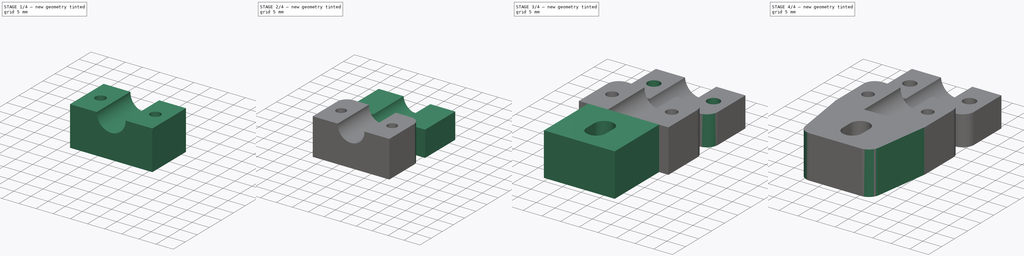
[diagram: build sequence overview — one tinted view per stage of 4, left to right]
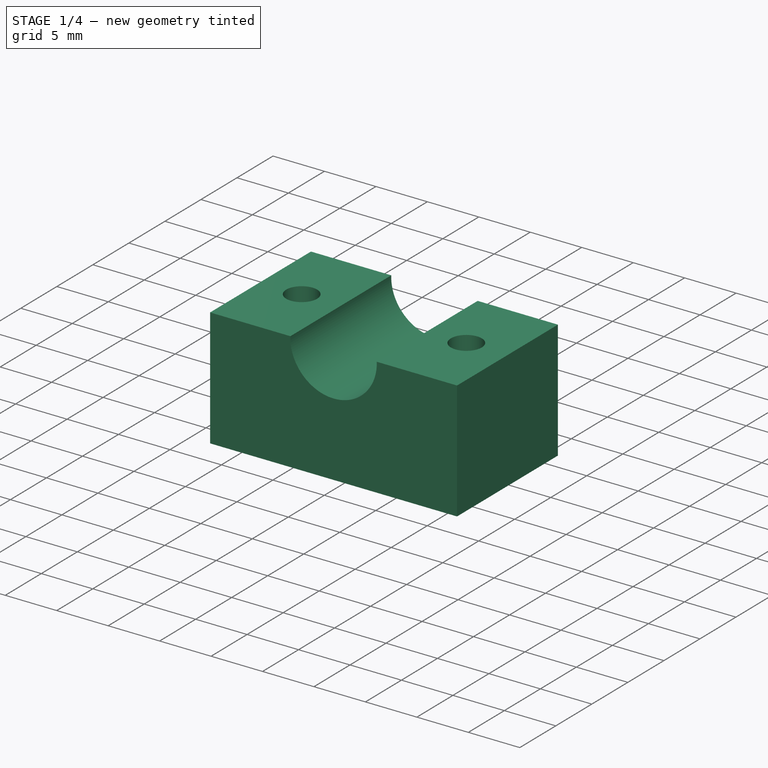
[diagram: stage 1 of 4 — iso view after this stage's code; geometry added in this stage tinted green]
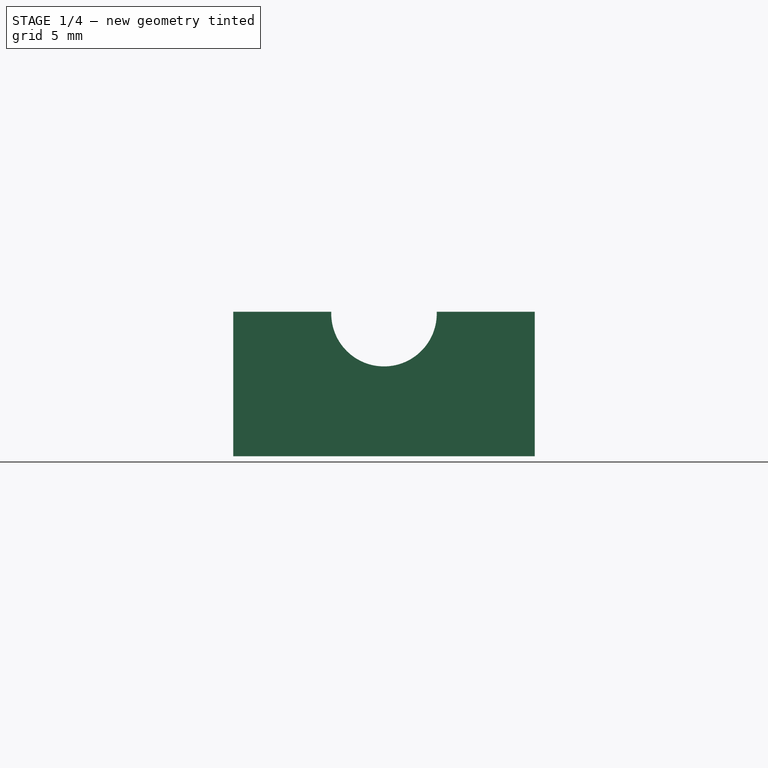
[diagram: stage 1 of 4 — front view after this stage's code; geometry added in this stage tinted green]
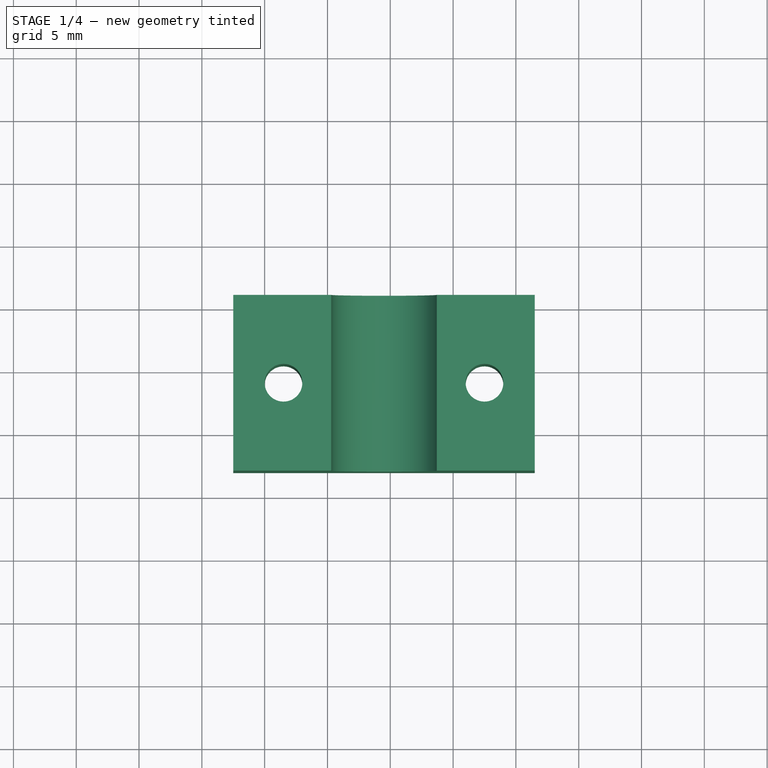
[diagram: stage 1 of 4 — top view after this stage's code; geometry added in this stage tinted green]
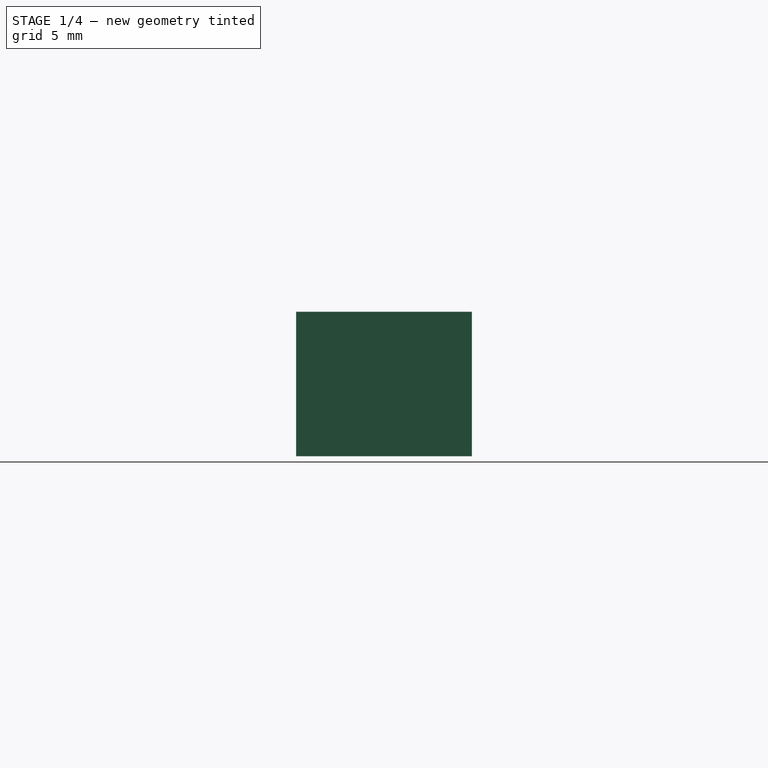
[diagram: stage 1 of 4 — right view after this stage's code; geometry added in this stage tinted green]
FCSTD DOCUMENT  (FreeCAD 0.16R6706 (Git))
Label: xy-railcaps
License: All rights reserved
LicenseURL: http://en.wikipedia.org/wiki/All_rights_reserved
objects: Sketcher::SketchObject×5, PartDesign::Pocket×5, Part::Box×3, PartDesign::Fillet×3, PartDesign::Draft×2, App::DocumentObjectGroup×1
note: 23 computed .brp shape members not serialized (recipe doc carries the construction recipe); baked Part::Feature solids carry a one-line shape summary decoded from their .brp

FEATURE [Part::Box] Box001  label="Cube001"
  Height = 11.5
  Length = 24
  Placement = pos=(-2.5,17,0) rot=(0,0,1;0rad)
  Width = 14
FEATURE [Sketcher::SketchObject] Sketch001
  Placement = pos=(-2.5,31,0) rot=(0,0.707107,0.707107;3.14159rad)
  Support = -> Box001 [Face4]
  sketch-geometry (1):
    g0: Circle CenterX=-12 CenterY=11.35 CenterZ=0 NormalX=0 NormalY=0 NormalZ=1 Radius=4.2
  constraints (3):
    c: Radius(g0) = 4.2
    c: DistanceX(g-2,g0) = -12
    c: DistanceY(g-1,g0) = 11.35
FEATURE [PartDesign::Pocket] Pocket001
  Length = 14
  Placement = pos=(-2.5,17,0) rot=(0,0,1;0rad)
  Sketch = -> Sketch001
  Type = 0
FEATURE [Sketcher::SketchObject] Sketch002
  Placement = pos=(-2.5,17,0) rot=(1,0,0;3.14159rad)
  Support = -> Pocket001 [Face5]
  sketch-geometry (2):
    g0: Circle CenterX=4 CenterY=-7 CenterZ=0 NormalX=0 NormalY=0 NormalZ=1 Radius=1.5
    g1: Circle CenterX=20 CenterY=-7 CenterZ=0 NormalX=0 NormalY=0 NormalZ=1 Radius=1.5
  constraints (6):
    c: Radius(g0) = 1.5
    c: Equal(g0,g1)
    c: DistanceY(g-1,g0) = -7
    c: DistanceY(g-1,g1) = -7
    c: DistanceX(g-2,g0) = 4
    c: Distance(g0,g1) = 16
FEATURE [PartDesign::Pocket] Pocket002
  Length = 5
  Placement = pos=(-2.5,17,0) rot=(0,0,1;0rad)
  Sketch = -> Sketch002
  Type = 1
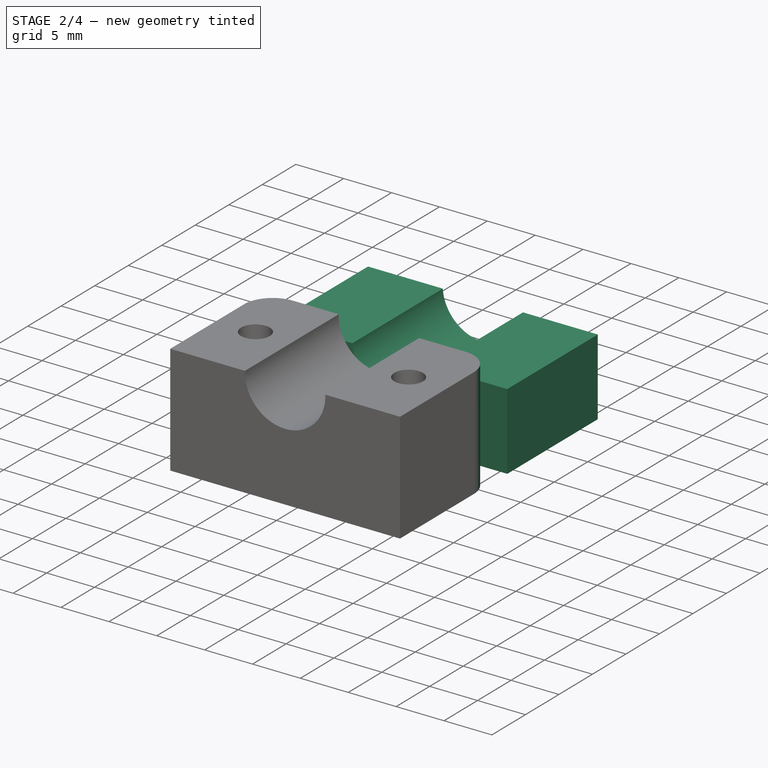
[diagram: stage 2 of 4 — iso view after this stage's code; geometry added in this stage tinted green]
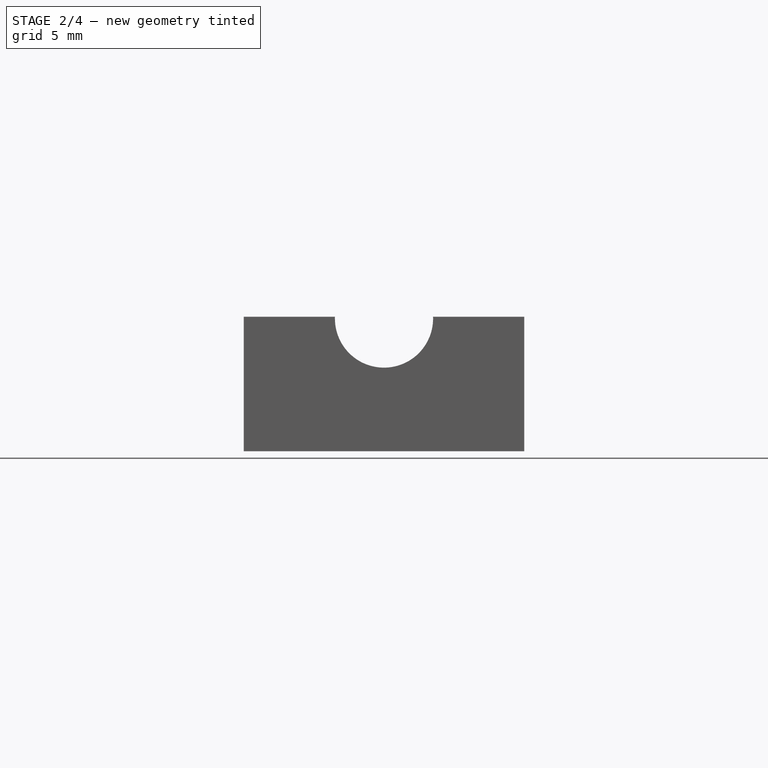
[diagram: stage 2 of 4 — front view after this stage's code; geometry added in this stage tinted green]
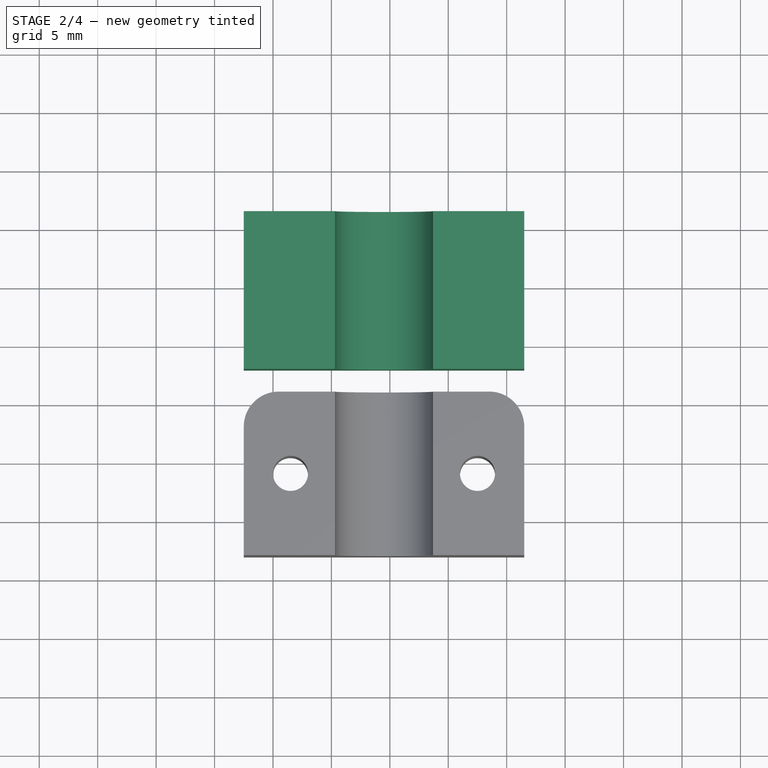
[diagram: stage 2 of 4 — top view after this stage's code; geometry added in this stage tinted green]
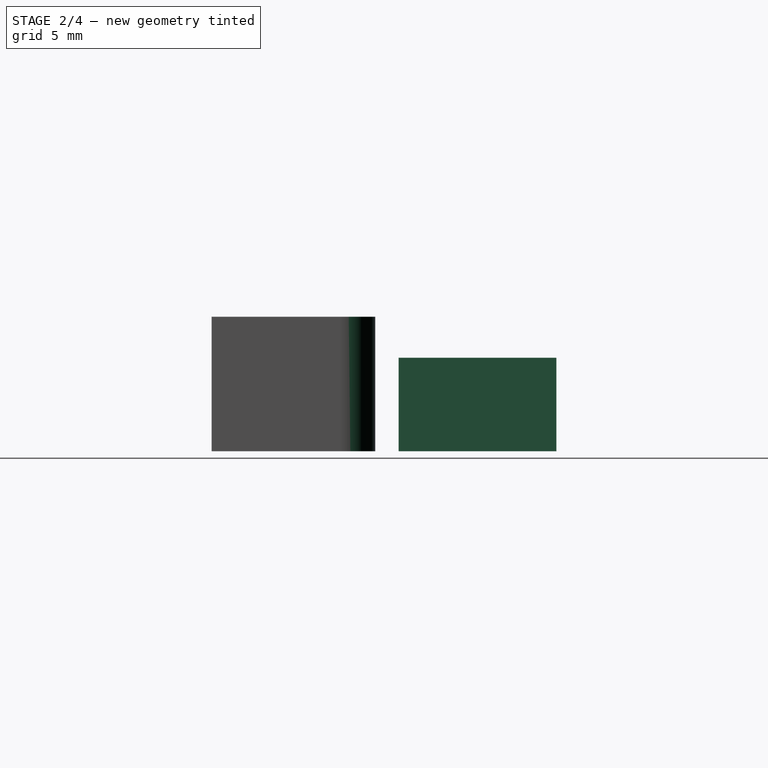
[diagram: stage 2 of 4 — right view after this stage's code; geometry added in this stage tinted green]
FEATURE [Part::Box] Box002  label="Cube002"
  Height = 8
  Length = 24
  Placement = pos=(-2.5,33,0) rot=(0,0,1;0rad)
  Width = 13.5
FEATURE [Sketcher::SketchObject] Sketch003
  Placement = pos=(-2.5,46.5,0) rot=(0,0.707107,0.707107;3.14159rad)
  Support = -> Box002 [Face4]
  sketch-geometry (1):
    g0: Circle CenterX=-12 CenterY=8.3 CenterZ=0 NormalX=0 NormalY=0 NormalZ=1 Radius=4.2
  constraints (3):
    c: Radius(g0) = 4.2
    c: DistanceX(g-2,g0) = -12
    c: DistanceY(g-1,g0) = 8.3
FEATURE [PartDesign::Pocket] Pocket003
  Length = 14
  Placement = pos=(-2.5,33,0) rot=(0,0,1;0rad)
  Sketch = -> Sketch003
  Type = 0
FEATURE [App::DocumentObjectGroup] Group  label="top"
  Group = -> [Fillet,Box002,Pocket004,Pocket003]
FEATURE [PartDesign::Fillet] Fillet003
  Base = -> Pocket002 [Edge3,Edge14]
  Placement = pos=(-2.5,17,0) rot=(0,0,1;0rad)
  Radius = 3
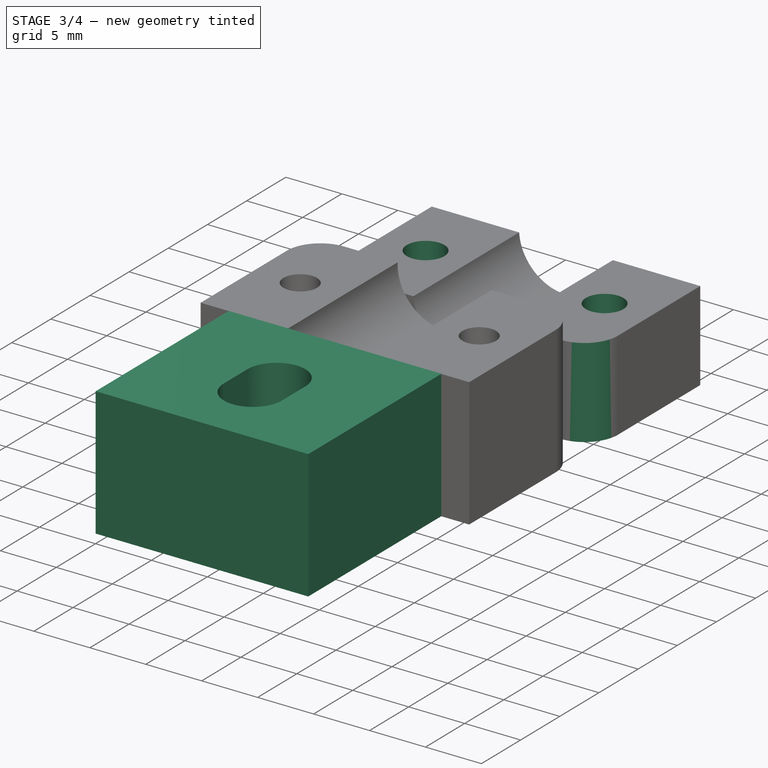
[diagram: stage 3 of 4 — iso view after this stage's code; geometry added in this stage tinted green]
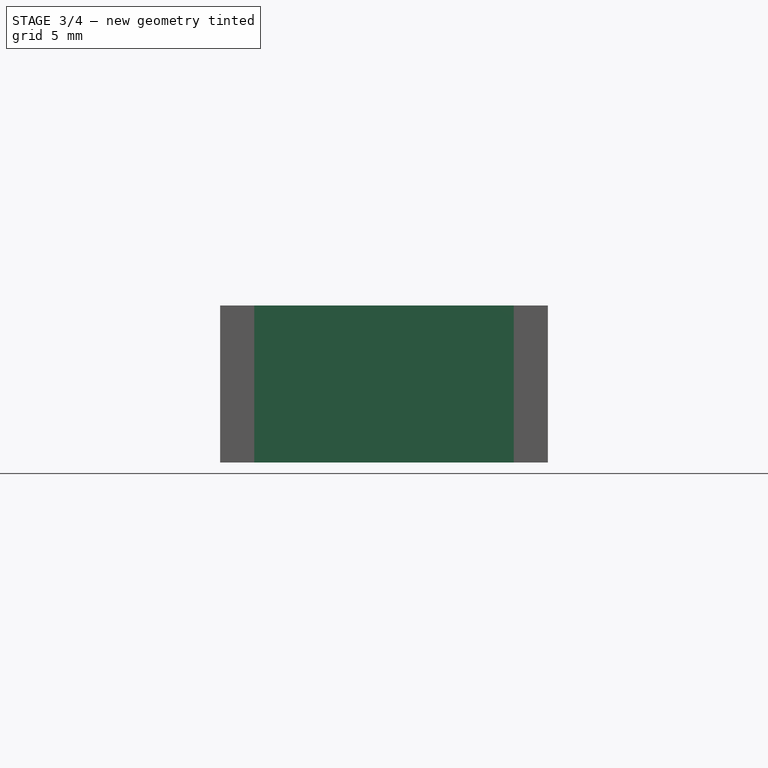
[diagram: stage 3 of 4 — front view after this stage's code; geometry added in this stage tinted green]
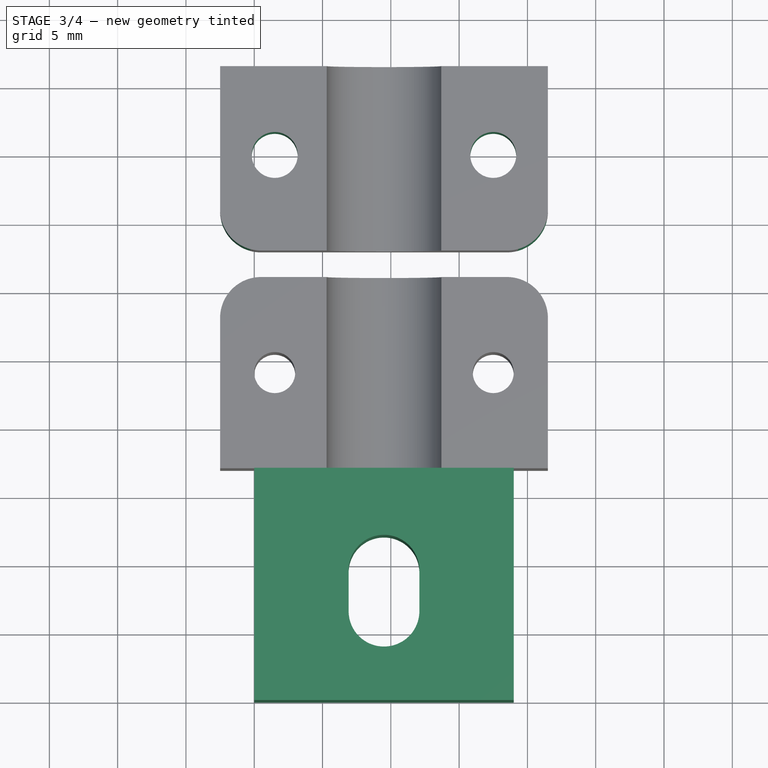
[diagram: stage 3 of 4 — top view after this stage's code; geometry added in this stage tinted green]
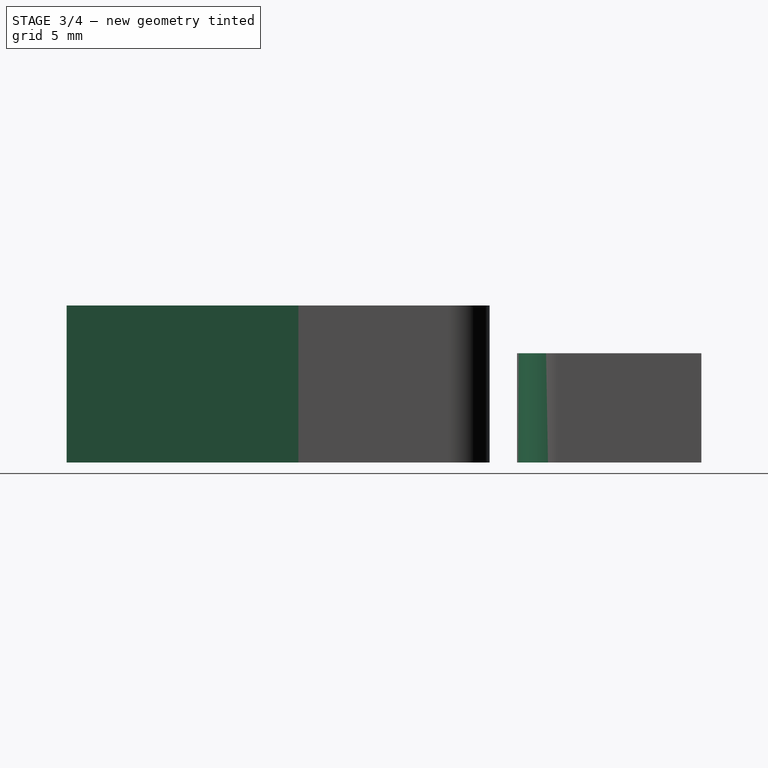
[diagram: stage 3 of 4 — right view after this stage's code; geometry added in this stage tinted green]
FEATURE [Part::Box] Box  label="Cube"
  Height = 11.5
  Length = 19
  Placement = pos=(0,0.03,0) rot=(0,0,1;0rad)
  Width = 17
FEATURE [Sketcher::SketchObject] Sketch
  Placement = pos=(0,0.03,11.5) rot=(0,0,1;0rad)
  Support = -> Box [Face6]
  sketch-geometry (4):
    g0: ArcOfCircle CenterX=9.5 CenterY=9.5 CenterZ=0 NormalX=0 NormalY=0 NormalZ=1 Radius=2.59 StartAngle=0 EndAngle=3.14159
    g1: ArcOfCircle CenterX=9.5 CenterY=6.5 CenterZ=0 NormalX=0 NormalY=0 NormalZ=1 Radius=2.59 StartAngle=3.14159 EndAngle=6.28319
    g2: LineSegment StartX=6.91 StartY=9.5 StartZ=0 EndX=6.91 EndY=6.5 EndZ=0
    g3: LineSegment StartX=12.09 StartY=9.5 StartZ=0 EndX=12.09 EndY=6.5 EndZ=0
  constraints (10):
    c: Tangent(g0,g3) = 1.5708
    c: Tangent(g0,g2) = -1.5708
    c: Tangent(g2,g1) = -1.5708
    c: Tangent(g3,g1) = 1.5708
    c: Vertical(g2)
    c: Equal(g0,g1)
    c: DistanceX(g-2,g1) = 9.5
    c: Distance(g0,g1) = 3
    c: DistanceY(g-1,g1) = 6.5
    c: Distance(g0,g0) = 5.18
FEATURE [PartDesign::Pocket] Pocket
  Length = 5
  Placement = pos=(0,0.03,0) rot=(0,0,1;0rad)
  Sketch = -> Sketch
  Type = 2
FEATURE [Sketcher::SketchObject] Sketch004
  Placement = pos=(-2.5,33,0) rot=(1,0,0;3.14159rad)
  Support = -> Pocket003 [Face5]
  sketch-geometry (2):
    g0: Circle CenterX=4 CenterY=-7 CenterZ=0 NormalX=0 NormalY=0 NormalZ=1 Radius=1.68
    g1: Circle CenterX=20 CenterY=-7 CenterZ=0 NormalX=0 NormalY=0 NormalZ=1 Radius=1.68
  constraints (6):
    c: Radius(g0) = 1.68
    c: Equal(g0,g1)
    c: DistanceY(g-1,g0) = -7
    c: DistanceY(g-1,g1) = -7
    c: DistanceX(g-2,g0) = 4
    c: Distance(g0,g1) = 16
FEATURE [PartDesign::Pocket] Pocket004
  Length = 5
  Placement = pos=(-2.5,33,0) rot=(0,0,1;0rad)
  Sketch = -> Sketch004
  Type = 1
FEATURE [PartDesign::Fillet] Fillet
  Base = -> Pocket004 [Edge5,Edge1]
  Placement = pos=(-2.5,33,0) rot=(0,0,1;0rad)
  Radius = 3
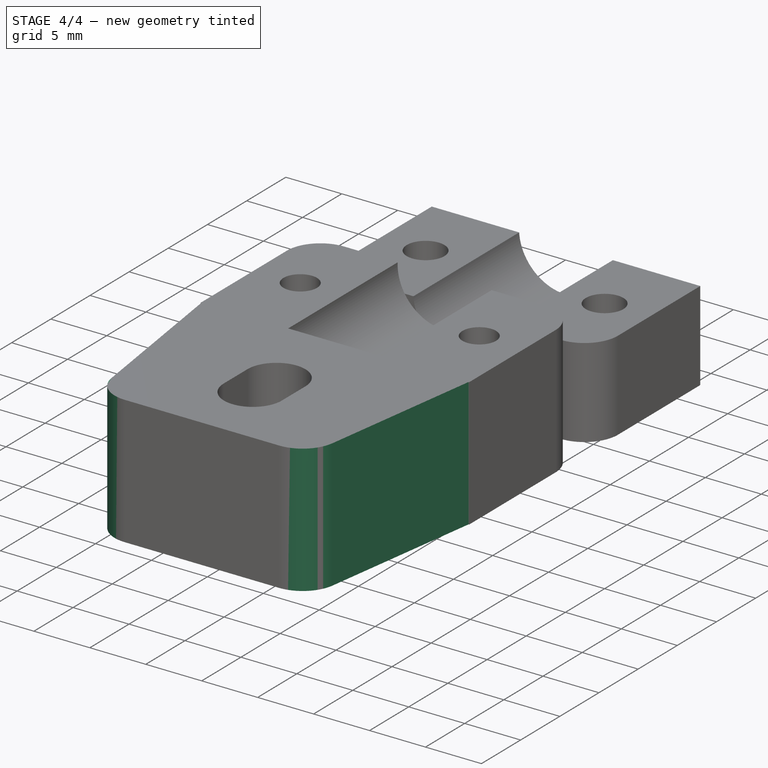
[diagram: stage 4 of 4 — iso view after this stage's code; geometry added in this stage tinted green]
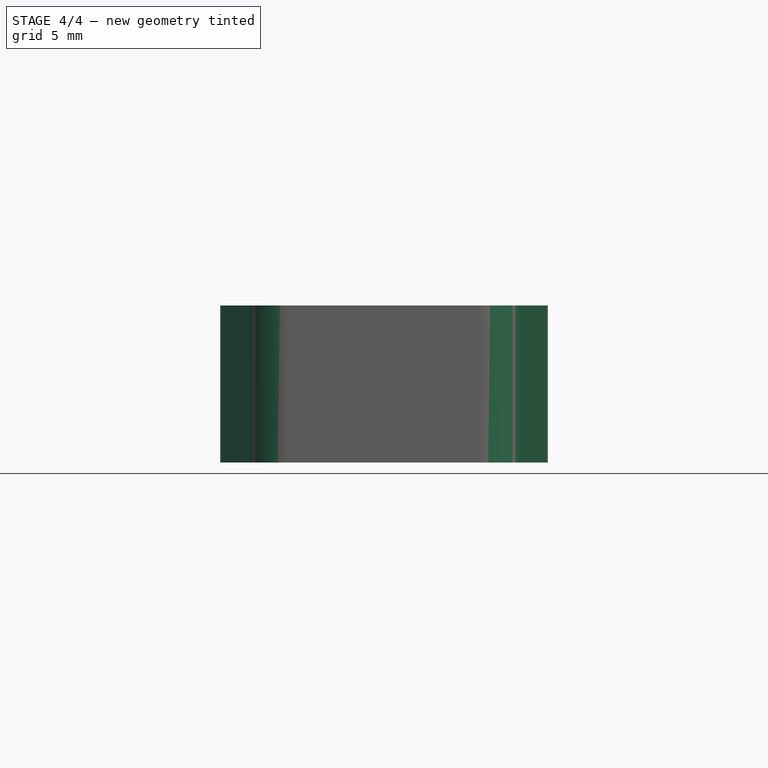
[diagram: stage 4 of 4 — front view after this stage's code; geometry added in this stage tinted green]
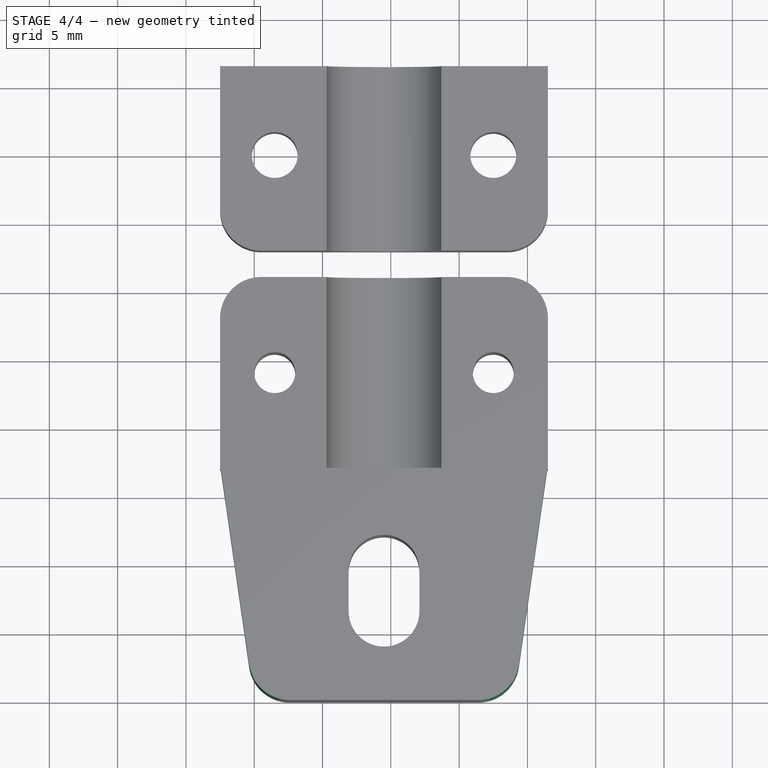
[diagram: stage 4 of 4 — top view after this stage's code; geometry added in this stage tinted green]
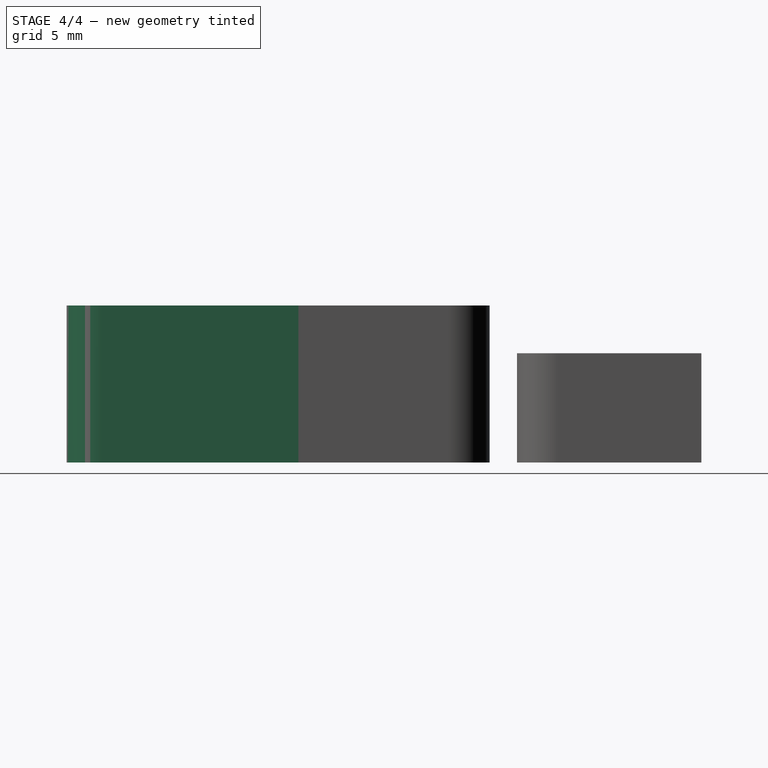
[diagram: stage 4 of 4 — right view after this stage's code; geometry added in this stage tinted green]
FEATURE [PartDesign::Draft] Draft
  Angle = 8.2
  Base = -> Pocket [Face6]
  NeutralPlane = -> Pocket [Face2]
  Placement = pos=(0,0.03,0) rot=(0,0,1;0rad)
  Reversed = true
FEATURE [PartDesign::Draft] Draft001
  Angle = 8.2
  Base = -> Draft [Face1]
  NeutralPlane = -> Draft [Face2]
  Placement = pos=(0,0.03,0) rot=(0,0,1;0rad)
  Reversed = true
FEATURE [PartDesign::Fillet] Fillet002
  Base = -> Draft001 [Edge6,Edge1]
  Placement = pos=(0,0.03,0) rot=(0,0,1;0rad)
  Radius = 3
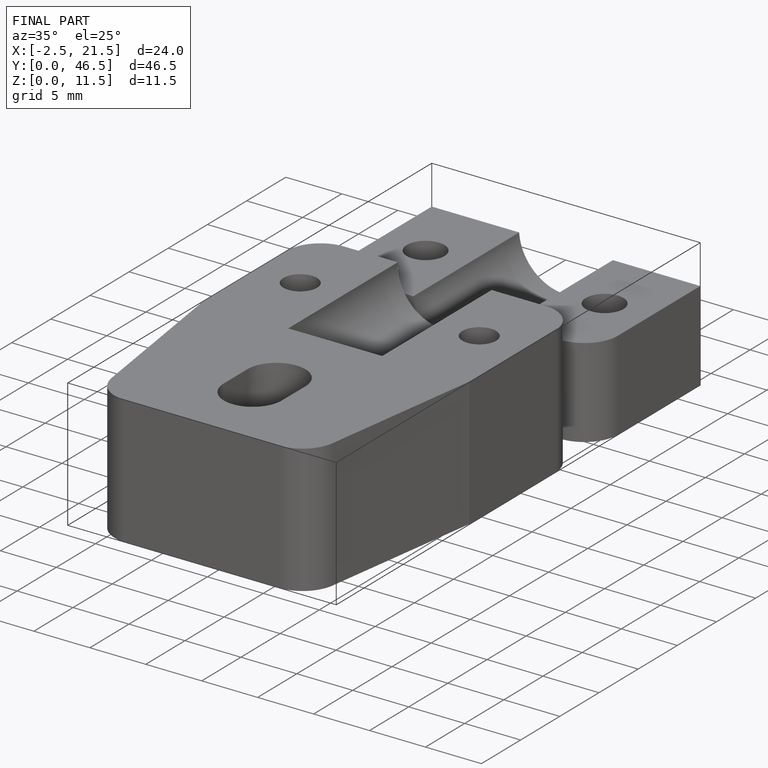
[diagram: finished part — iso view with bounding-box wireframe]
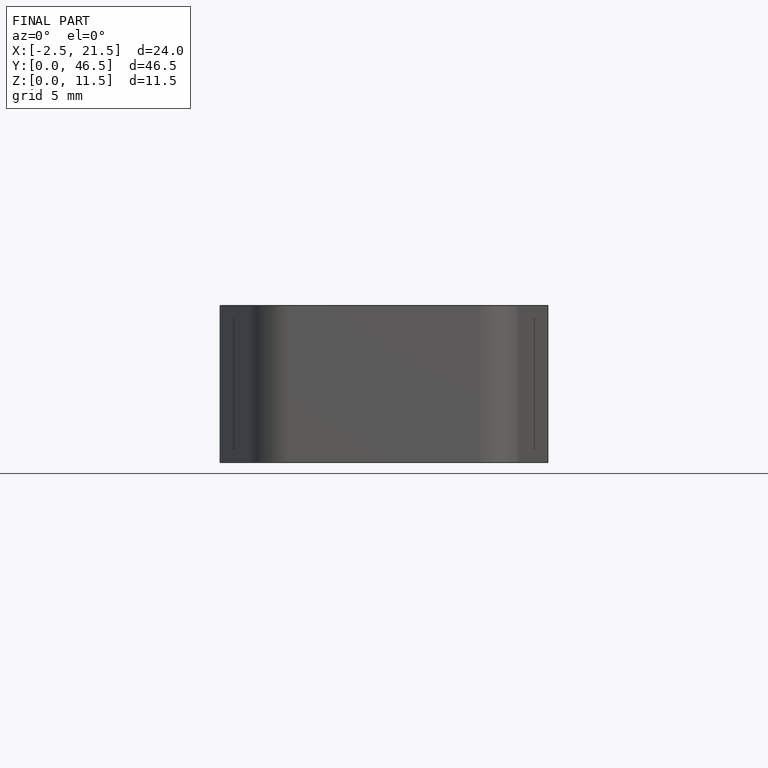
[diagram: finished part — front view with bounding-box wireframe]
